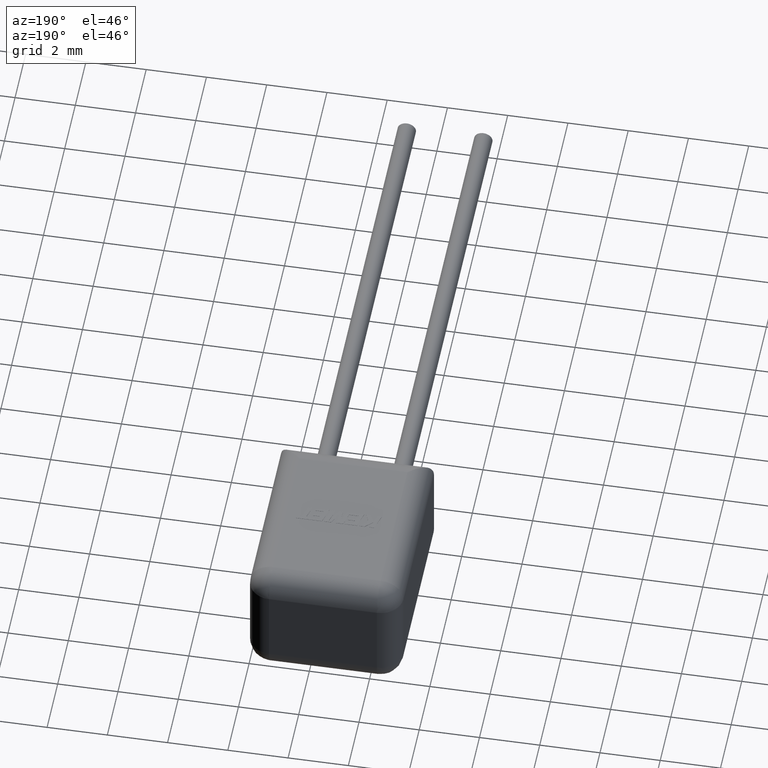
[diagram: clean part render]
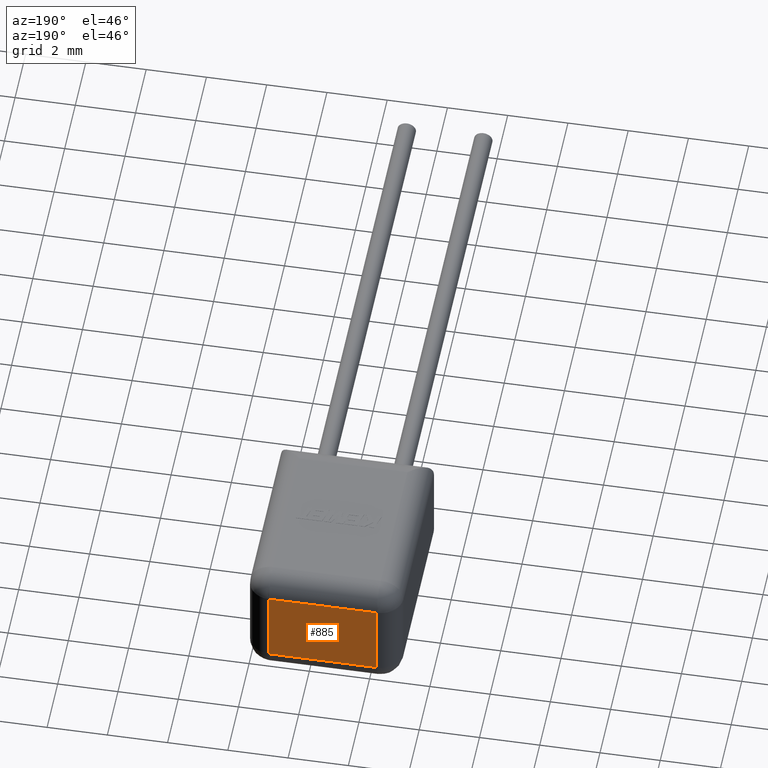
[diagram: same view with one face highlighted and labeled with its STEP entity id]
A machine part, auxiliary view. The second image highlights one B-rep face of the part: STEP entity #885.
In plain terms, the highlighted planar face has unit normal (0, -1, 0).
Its self-contained STEP definition (entity closure, byte-faithful):
#126 = LINE ( 'NONE', #1988, #1572 ) ;
#179 = LINE ( 'NONE', #1161, #2042 ) ;
#402 = EDGE_CURVE ( 'NONE', #2024, #1812, #3576, .T. ) ;
#688 = CARTESIAN_POINT ( 'NONE',  ( -0.7499999999999997800, 6.505759999999998700, 4.070000000000000300 ) ) ;
#885 = ADVANCED_FACE ( 'NONE', ( #3692 ), #1623, .F. ) ;
#1118 = LINE ( 'NONE', #3625, #2357 ) ;
#1156 = EDGE_CURVE ( 'NONE', #2089, #3171, #179, .T. ) ;
#1161 = CARTESIAN_POINT ( 'NONE',  ( -4.330000000000000100, 6.505759999999998700, 4.070000000000000300 ) ) ;
#1341 = DIRECTION ( 'NONE',  ( 0.0000000000000000000, -1.000000000000000000, 0.0000000000000000000 ) ) ;
#1351 = VECTOR ( 'NONE', #1353, 1000.000000000000000 ) ;
#1353 = DIRECTION ( 'NONE',  ( 0.0000000000000000000, 0.0000000000000000000, -1.000000000000000000 ) ) ;
#1378 = CARTESIAN_POINT ( 'NONE',  ( -0.7499999999999997800, 6.505759999999998700, 0.7499999999999997800 ) ) ;
#1451 = EDGE_CURVE ( 'NONE', #1812, #2089, #1118, .T. ) ;
#1540 = ORIENTED_EDGE ( 'NONE', *, *, #1156, .T. ) ;
#1572 = VECTOR ( 'NONE', #2529, 1000.000000000000000 ) ;
#1623 = PLANE ( 'NONE',  #1966 ) ;
#1812 = VERTEX_POINT ( 'NONE', #1378 ) ;
#1863 = CARTESIAN_POINT ( 'NONE',  ( -0.7499999999999997800, 6.505759999999998700, 3.320000000000000700 ) ) ;
#1921 = CARTESIAN_POINT ( 'NONE',  ( -5.079999999999999200, 6.505759999999998700, 4.070000000000000300 ) ) ;
#1966 = AXIS2_PLACEMENT_3D ( 'NONE', #1921, #1341, #3335 ) ;
#1988 = CARTESIAN_POINT ( 'NONE',  ( -5.079999999999999200, 6.505759999999998700, 3.320000000000000700 ) ) ;
#2007 = ORIENTED_EDGE ( 'NONE', *, *, #402, .T. ) ;
#2024 = VERTEX_POINT ( 'NONE', #1863 ) ;
#2042 = VECTOR ( 'NONE', #2890, 1000.000000000000000 ) ;
#2089 = VERTEX_POINT ( 'NONE', #2794 ) ;
#2206 = DIRECTION ( 'NONE',  ( -1.000000000000000000, 0.0000000000000000000, 0.0000000000000000000 ) ) ;
#2269 = CARTESIAN_POINT ( 'NONE',  ( -4.330000000000000100, 6.505759999999998700, 3.320000000000000700 ) ) ;
#2357 = VECTOR ( 'NONE', #2206, 1000.000000000000000 ) ;
#2529 = DIRECTION ( 'NONE',  ( 1.000000000000000000, -0.0000000000000000000, -0.0000000000000000000 ) ) ;
#2715 = EDGE_LOOP ( 'NONE', ( #1540, #2821, #2007, #3080 ) ) ;
#2794 = CARTESIAN_POINT ( 'NONE',  ( -4.330000000000000100, 6.505759999999998700, 0.7499999999999997800 ) ) ;
#2821 = ORIENTED_EDGE ( 'NONE', *, *, #3140, .T. ) ;
#2890 = DIRECTION ( 'NONE',  ( -0.0000000000000000000, -0.0000000000000000000, 1.000000000000000000 ) ) ;
#3080 = ORIENTED_EDGE ( 'NONE', *, *, #1451, .T. ) ;
#3140 = EDGE_CURVE ( 'NONE', #3171, #2024, #126, .T. ) ;
#3171 = VERTEX_POINT ( 'NONE', #2269 ) ;
#3335 = DIRECTION ( 'NONE',  ( 0.0000000000000000000, -0.0000000000000000000, -1.000000000000000000 ) ) ;
#3576 = LINE ( 'NONE', #688, #1351 ) ;
#3625 = CARTESIAN_POINT ( 'NONE',  ( -5.079999999999999200, 6.505759999999998700, 0.7499999999999997800 ) ) ;
#3692 = FACE_OUTER_BOUND ( 'NONE', #2715, .T. ) ;